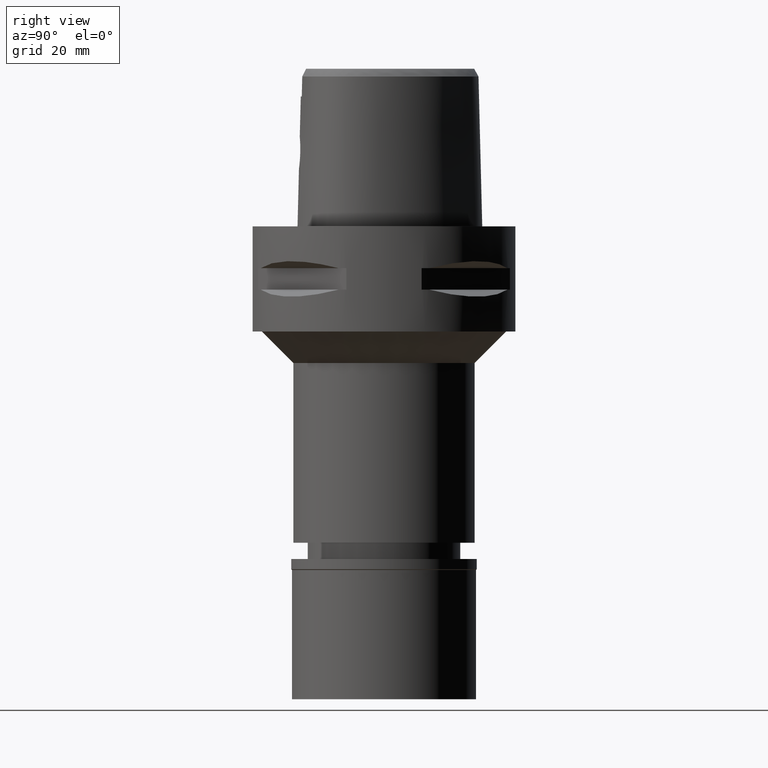
[diagram: clean part render]
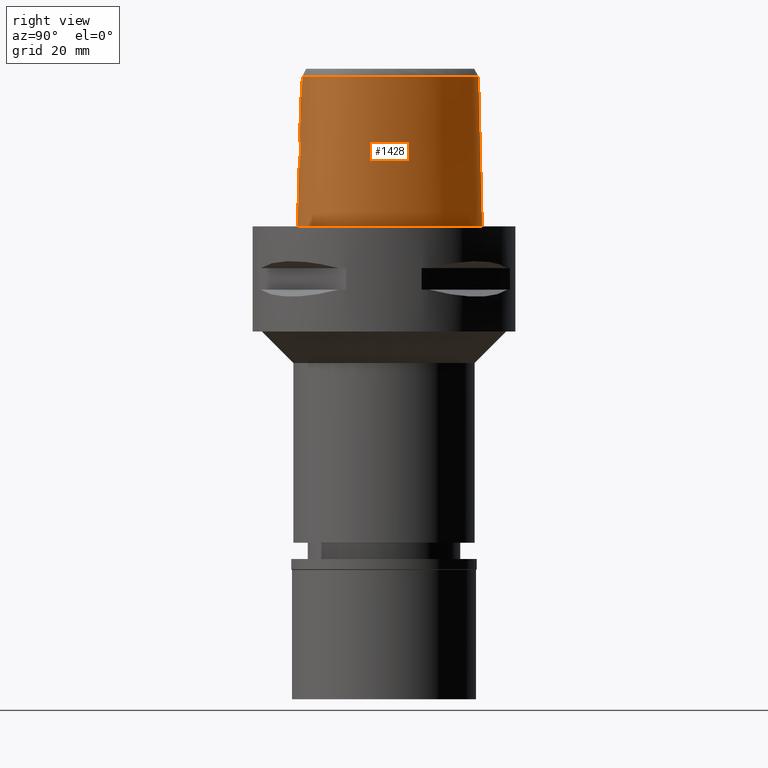
[diagram: same view with one face highlighted and labeled with its STEP entity id]
A machine part, right view. The second image highlights one B-rep face of the part: STEP entity #1428.
In plain terms, the highlighted face is a freeform B-spline surface patch.
Its self-contained STEP definition (entity closure, byte-faithful):
#5 = ORIENTED_EDGE ( 'NONE', *, *, #3525, .T. ) ;
#8 = CARTESIAN_POINT ( 'NONE',  ( -1.070056051250000140, -15.95437342361000255, 19.20397102303999759 ) ) ;
#78 = CARTESIAN_POINT ( 'NONE',  ( 6.797738285503420229E-08, -15.96503292052493173, 19.60000012629468102 ) ) ;
#83 = FACE_OUTER_BOUND ( 'NONE', #3078, .T. ) ;
#106 = CARTESIAN_POINT ( 'NONE',  ( 14.25868461041000046, -10.78027775960999968, 29.09116402499000031 ) ) ;
#120 = EDGE_CURVE ( 'NONE', #3903, #1806, #144, .T. ) ;
#133 = CARTESIAN_POINT ( 'NONE',  ( 4.416345102658000066, 17.06979537405000258, 29.09116402499000031 ) ) ;
#144 = B_SPLINE_CURVE_WITH_KNOTS ( 'NONE', 3,
 ( #4576, #2276, #78, #3028 ),
 .UNSPECIFIED., .F., .F.,
 ( 4, 4 ),
 ( 0.0000000000000000000, 1.000000000000000000 ),
 .UNSPECIFIED. ) ;
#149 = CARTESIAN_POINT ( 'NONE',  ( 1.979050802164249445, -16.09313883417901536, 11.67852903116631147 ) ) ;
#159 = CARTESIAN_POINT ( 'NONE',  ( 15.05961594561999917, -9.784613922648000894, 29.09116402499000031 ) ) ;
#170 = CARTESIAN_POINT ( 'NONE',  ( 1.138812104615412268, -16.15267061231297774, 11.17057442770736664 ) ) ;
#181 = CARTESIAN_POINT ( 'NONE',  ( 16.84071371013999752, -5.352498062335000917, 29.09116402499000031 ) ) ;
#201 = CARTESIAN_POINT ( 'NONE',  ( 17.26695525657000019, -0.2694874901021999669, 9.316778021076999039 ) ) ;
#206 = CARTESIAN_POINT ( 'NONE',  ( -2.281366820062999925E-11, -16.45500000000000185, 1.870355722151999859E-13 ) ) ;
#237 = CARTESIAN_POINT ( 'NONE',  ( 2.899217746531572271, -15.97873758491097718, 13.02871175161756589 ) ) ;
#263 = CARTESIAN_POINT ( 'NONE',  ( 3.050149896193000032, -15.93316336324772031, 14.18941404704231957 ) ) ;
#276 = CARTESIAN_POINT ( 'NONE',  ( -2.281366820062999925E-11, -16.45500000000000185, 1.870355722151999859E-13 ) ) ;
#288 = CARTESIAN_POINT ( 'NONE',  ( 2.170299400654049915, -15.96703807926082952, 16.14297866672072601 ) ) ;
#307 = CARTESIAN_POINT ( 'NONE',  ( 13.06460231237890035, -11.91950040983845405, 28.52071728562175679 ) ) ;
#309 = ORIENTED_EDGE ( 'NONE', *, *, #2839, .F. ) ;
#312 = CARTESIAN_POINT ( 'NONE',  ( 1.217867162102866496, -16.00861105600193213, 16.79681041045230927 ) ) ;
#428 = CARTESIAN_POINT ( 'NONE',  ( 5.053620745117999746, -16.16974069184000129, -0.5704149808821999956 ) ) ;
#476 = CARTESIAN_POINT ( 'NONE',  ( 13.05575583757000047, -11.90823684872999877, 29.09116402499000031 ) ) ;
#503 = CARTESIAN_POINT ( 'NONE',  ( 10.90668475686999805, 11.98047049248000206, 29.09116402499000031 ) ) ;
#517 = CARTESIAN_POINT ( 'NONE',  ( 2.417729193041641800, -16.04731727844026068, 12.13798983179896673 ) ) ;
#527 = CARTESIAN_POINT ( 'NONE',  ( 16.22974790885000118, -8.250337556540999984, 19.20397102303999759 ) ) ;
#550 = CARTESIAN_POINT ( 'NONE',  ( 7.668807556521000102, 15.44980294531000098, 19.20397102303999759 ) ) ;
#571 = CARTESIAN_POINT ( 'NONE',  ( 13.96223202702999977, 8.061115273748999499, 19.20397102303999759 ) ) ;
#572 = CARTESIAN_POINT ( 'NONE',  ( 8.526051962487000024E-11, 18.69499999997999851, 1.858143268880999949E-13 ) ) ;
#582 = CARTESIAN_POINT ( 'NONE',  ( 2.076784380862217727, -16.08390063340860010, 11.76594178764440457 ) ) ;
#605 = CARTESIAN_POINT ( 'NONE',  ( 1.466707760593450205, -16.13401281180602709, 11.31839107166328340 ) ) ;
#613 = LINE ( 'NONE', #3178, #2006 ) ;
#631 = CARTESIAN_POINT ( 'NONE',  ( 1.531589067142497651, -15.99732691922906724, 16.63945844436470978 ) ) ;
#649 = CARTESIAN_POINT ( 'NONE',  ( 7.523733068099055288, 15.26501041873571651, 28.52071728562175679 ) ) ;
#653 = CARTESIAN_POINT ( 'NONE',  ( 2.975249651912823090, -15.92914271478721844, 14.67846616982687102 ) ) ;
#679 = CARTESIAN_POINT ( 'NONE',  ( 2.951306861662620573, -15.92924742299003604, 14.77626636585411823 ) ) ;
#701 = CARTESIAN_POINT ( 'NONE',  ( 2.520317714005604781, -15.94834054842958437, 15.72060082174884776 ) ) ;
#741 = CARTESIAN_POINT ( 'NONE',  ( -1.060560745390999982, -15.70738052230000115, 29.09116402499000031 ) ) ;
#769 = CARTESIAN_POINT ( 'NONE',  ( 4.728927212299886662, 17.73480469916560054, -5.104437950337152585E-07 ) ) ;
#770 = CARTESIAN_POINT ( 'NONE',  ( 11.44887800200999806, -13.28533829809000011, 19.20397102303999759 ) ) ;
#794 = CARTESIAN_POINT ( 'NONE',  ( 1.286803344733999932, -15.75925545812999928, 29.09116402499000031 ) ) ;
#808 = CARTESIAN_POINT ( 'NONE',  ( 3.168920890822999770, -15.55911073834000113, 28.52071374672999582 ) ) ;
#843 = CARTESIAN_POINT ( 'NONE',  ( 8.697311410043001345, -14.35163080553999926, 29.09116402499000031 ) ) ;
#865 = CARTESIAN_POINT ( 'NONE',  ( 15.78948609398999814, -9.116064046029999091, 19.20397102303999759 ) ) ;
#882 = CARTESIAN_POINT ( 'NONE',  ( 3.027798455715707604, -15.95003164277662755, 13.62032956274717321 ) ) ;
#891 = CARTESIAN_POINT ( 'NONE',  ( 0.4768940199983999761, 18.48195206954000014, 9.316778021076999039 ) ) ;
#904 = CARTESIAN_POINT ( 'NONE',  ( 1.805376232599612107, -16.10834772479969246, 11.53923680360887261 ) ) ;
#916 = CARTESIAN_POINT ( 'NONE',  ( 13.74710176135999973, 7.936918434490999985, 29.09116402499000031 ) ) ;
#937 = CARTESIAN_POINT ( 'NONE',  ( 17.17866843611000149, -7.169980046630000103, -0.5704149808821999956 ) ) ;
#948 = CARTESIAN_POINT ( 'NONE',  ( 0.9939297242850041458, -16.15959612542589952, 11.11569146158250554 ) ) ;
#959 = CARTESIAN_POINT ( 'NONE',  ( 15.57503056394999952, -8.992248087672997769, 29.09116402499000031 ) ) ;
#994 = CARTESIAN_POINT ( 'NONE',  ( 1.779262221764184471, -15.98633376436652753, 16.47774649146144910 ) ) ;
#1016 = CARTESIAN_POINT ( 'NONE',  ( 2.196663950529426312, -15.96564993910013719, 16.11602529263612027 ) ) ;
#1034 = CARTESIAN_POINT ( 'NONE',  ( 8.526051962487000024E-11, 18.69499999997999851, 1.858143268880999949E-13 ) ) ;
#1040 = CARTESIAN_POINT ( 'NONE',  ( 16.01658383235694316, -8.155509186612158956, 28.52071728562175679 ) ) ;
#1046 = CARTESIAN_POINT ( 'NONE',  ( 2.320231428406521079, -15.95909571851455944, 15.98050410814317424 ) ) ;
#1053 = CARTESIAN_POINT ( 'NONE',  ( -0.5293534873858000145, 17.95181534379999988, 29.09116402499000031 ) ) ;
#1097 = CARTESIAN_POINT ( 'NONE',  ( 2.824468722466921378, -15.93300016794370677, 15.15105085638172433 ) ) ;
#1111 = CARTESIAN_POINT ( 'NONE',  ( 17.56373944202030657, -5.455996095565049053, -5.104437950337152585E-07 ) ) ;
#1135 = B_SPLINE_CURVE_WITH_KNOTS ( 'NONE', 3,
 ( #1853, #2241, #2496, #1407, #649, #1457, #3731, #2138, #4439, #2165, #3623, #2890, #1040, #3653, #2575, #4072, #307, #1799, #1190, #4590, #3830, #1170 ),
 .UNSPECIFIED., .F., .F.,
 ( 4, 1, 1, 1, 1, 1, 1, 1, 1, 1, 1, 1, 1, 1, 1, 1, 1, 1, 1, 4 ),
 ( 0.0000000000000000000, 0.04404152929334299166, 0.08808305858541753963, 0.1761661171698837292, 0.2642491757542442810, 0.3523322343386048883, 0.4404152929230710778, 0.5284983515073259364, 0.5725398807996119332, 0.6165814100916864327, 0.6606229393839724295, 0.6826437040299567771, 0.7046644686761526222, 0.7266852333222428850, 0.7487059979682272326, 0.7927475272605132295, 0.8367890565526935331, 0.8808305858448738368, 0.9689136444292447692, 1.000000000000000000 ),
 .UNSPECIFIED. ) ;
#1138 = CARTESIAN_POINT ( 'NONE',  ( -0.7074880617262999660, -15.72098075325000011, 29.09116402499000031 ) ) ;
#1170 = CARTESIAN_POINT ( 'NONE',  ( 3.168920890822999770, -15.55911073834000113, 28.52071374672999582 ) ) ;
#1190 = CARTESIAN_POINT ( 'NONE',  ( 8.702202469522230643, -14.36510984285972370, 28.52071728562175679 ) ) ;
#1208 = CARTESIAN_POINT ( 'NONE',  ( 1.309813746412000102, -16.25411905489000475, 9.316778021076999039 ) ) ;
#1237 = CARTESIAN_POINT ( 'NONE',  ( 16.53021709244000093, 3.708305586904000251, -0.5704149808821999956 ) ) ;
#1240 = VERTEX_POINT ( 'NONE', #572 ) ;
#1253 = ORIENTED_EDGE ( 'NONE', *, *, #4442, .F. ) ;
#1256 = B_SPLINE_CURVE_WITH_KNOTS ( 'NONE', 3,
 ( #4536, #1575, #4093, #3750 ),
 .UNSPECIFIED., .F., .F.,
 ( 4, 4 ),
 ( 0.0000000000000000000, 1.000000000000000000 ),
 .UNSPECIFIED. ) ;
#1257 = CARTESIAN_POINT ( 'NONE',  ( 1.941729150336999998, 18.07741811289999845, 19.20397102303999759 ) ) ;
#1275 = CARTESIAN_POINT ( 'NONE',  ( 2.638828814099706488, -16.01860464026678343, 12.46732066279884243 ) ) ;
#1282 = CARTESIAN_POINT ( 'NONE',  ( 15.66039569936999953, -10.22138777847999869, -0.5704149808821999956 ) ) ;
#1285 = CARTESIAN_POINT ( 'NONE',  ( 5.051093169834740770, -16.15562501262835227, -5.104437950337152585E-07 ) ) ;
#1295 = CARTESIAN_POINT ( 'NONE',  ( 2.744096643855139295, -16.00346064512361721, 12.66698413766678222 ) ) ;
#1306 = CARTESIAN_POINT ( 'NONE',  ( -0.3730031600054000140, 18.45651532734999734, 9.316778021076999039 ) ) ;
#1324 = B_SPLINE_CURVE_WITH_KNOTS ( 'NONE', 3,
 ( #4254, #4294, #3146, #2009, #2391, #2735, #948, #2431, #1705, #170, #1640, #2823, #3190, #605, #3211, #904, #4687, #149, #3584, #582, #4710, #1662, #4314, #2453, #3890, #2094, #517, #1684, #2070, #1275, #2412, #1295, #3563, #3864, #2784, #237, #1726, #4232, #882, #3121, #4619, #2760, #4278, #263, #4443, #653, #679, #1780, #1860, #3628, #4763, #2894, #1097, #4785, #3658, #4002, #701, #3239, #3606, #1046, #1461, #1410, #1016, #2501, #288, #1436, #4076, #2524, #1828, #2116, #994, #2919, #4027, #631, #4812, #4418, #2191, #312, #2217, #3683, #2871 ),
 .UNSPECIFIED., .F., .F.,
 ( 4, 2, 2, 1, 1, 1, 2, 2, 2, 2, 2, 1, 1, 2, 2, 2, 2, 2, 1, 2, 2, 2, 2, 2, 2, 2, 2, 1, 1, 1, 2, 2, 2, 2, 2, 1, 1, 2, 2, 2, 2, 2, 2, 2, 2, 4 ),
 ( 0.0000000000000000000, 0.06249999999999446276, 0.09374999999999170108, 0.1093749999999902578, 0.1171874999999895500, 0.1210937499999893002, 0.1230468749999892308, 0.1249999999999891753, 0.1874999999999953648, 0.2187499999999985012, 0.2343750000000000278, 0.2421875000000005551, 0.2460937500000006939, 0.2480468750000008049, 0.2500000000000009437, 0.2812499999999989453, 0.3124999999999969469, 0.3437499999999949485, 0.3593749999999939493, 0.3671874999999935607, 0.3749999999999931166, 0.4374999999999887867, 0.4687499999999866218, 0.4843749999999857891, 0.4999999999999850120, 0.5624999999999812372, 0.5937499999999790168, 0.6093749999999782396, 0.6171874999999780176, 0.6210937499999776845, 0.6230468749999775735, 0.6249999999999773515, 0.6874999999999787947, 0.7187499999999792388, 0.7343749999999795719, 0.7421874999999801270, 0.7460937499999804601, 0.7480468749999802380, 0.7499999999999800160, 0.7812499999999832356, 0.7968749999999843459, 0.8124999999999855671, 0.8437499999999880096, 0.8593749999999890088, 0.8749999999999901190, 1.000000000000000000 ),
 .UNSPECIFIED. ) ;
#1327 = CARTESIAN_POINT ( 'NONE',  ( 11.47659489049000037, 12.46143685309000126, -0.5704149808821999956 ) ) ;
#1351 = CARTESIAN_POINT ( 'NONE',  ( -0.5593289216242000039, 18.44521827818000048, 9.316778021076999039 ) ) ;
#1355 = CARTESIAN_POINT ( 'NONE',  ( 14.78833381328783325, -11.28232911036973363, -5.104437950337152585E-07 ) ) ;
#1360 = CARTESIAN_POINT ( 'NONE',  ( -2.940966075313999512E-11, 17.98202997909999823, 28.52071728569000086 ) ) ;
#1407 = CARTESIAN_POINT ( 'NONE',  ( 4.422474504766104708, 17.08283549833584303, 28.52071728562175679 ) ) ;
#1410 = CARTESIAN_POINT ( 'NONE',  ( 2.232748692361828713, -15.96374470980125437, 16.07819212816551868 ) ) ;
#1425 = CARTESIAN_POINT ( 'NONE',  ( 0.6801907867857971413, 18.69500001275854828, -5.104437950337152585E-07 ) ) ;
#1428 = ADVANCED_FACE ( 'NONE', ( #83 ), #1595, .T. ) ;
#1436 = CARTESIAN_POINT ( 'NONE',  ( 2.164021906619611801, -15.96736812113673842, 16.14931344321802698 ) ) ;
#1455 = B_SPLINE_CURVE_WITH_KNOTS ( 'NONE', 3,
 ( #2605, #3022, #3782, #2680 ),
 .UNSPECIFIED., .F., .F.,
 ( 4, 4 ),
 ( 0.0000000000000000000, 1.000000000000000000 ),
 .UNSPECIFIED. ) ;
#1457 = CARTESIAN_POINT ( 'NONE',  ( 10.91764517733151152, 11.98972036053646129, 28.52071728562175679 ) ) ;
#1461 = CARTESIAN_POINT ( 'NONE',  ( 2.262444582314413477, -15.96216938760132464, 16.04565077979857790 ) ) ;
#1479 = CARTESIAN_POINT ( 'NONE',  ( 5.009809401002999429, -15.92506869988999796, 9.316778021076999039 ) ) ;
#1525 = CARTESIAN_POINT ( 'NONE',  ( -0.7201291679189000261, -16.21519136243999881, 9.316778021076999039 ) ) ;
#1575 = CARTESIAN_POINT ( 'NONE',  ( 3.213444788215948034, -15.61774735051721308, 25.97357128944999971 ) ) ;
#1595 = B_SPLINE_SURFACE_WITH_KNOTS ( 'NONE', 3, 3, ( 
 ( #4487, #3056, #8, #741 ),
 ( #4557, #1525, #3009, #1138 ),
 ( #4829, #1208, #4143, #794 ),
 ( #428, #1479, #2282, #3775 ),
 ( #4194, #3335, #4120, #843 ),
 ( #2329, #3824, #770, #1844 ),
 ( #2957, #2260, #1649, #476 ),
 ( #4303, #2722, #1968, #106 ),
 ( #1282, #2018, #3528, #159 ),
 ( #2794, #3457, #865, #959 ),
 ( #3550, #2057, #527, #4607 ),
 ( #937, #2441, #4218, #1597 ),
 ( #3081, #2768, #3508, #181 ),
 ( #4286, #2422, #4583, #2350 ),
 ( #3898, #201, #1694, #3129 ),
 ( #1237, #3919, #3179, #4675 ),
 ( #4262, #4628, #571, #916 ),
 ( #1327, #3848, #3110, #503 ),
 ( #2401, #3873, #550, #1991 ),
 ( #2812, #3481, #1671, #133 ),
 ( #3155, #1627, #1257, #2743 ),
 ( #4240, #891, #2039, #4650 ),
 ( #2377, #1306, #1812, #4697 ),
 ( #3937, #1351, #2102, #1053 ) ),
 .UNSPECIFIED., .F., .F., .F.,
 ( 4, 1, 1, 1, 1, 1, 1, 1, 1, 1, 1, 1, 1, 1, 1, 1, 1, 1, 1, 1, 1, 4 ),
 ( 4, 4 ),
 ( -0.01796851319151999971, 0.0000000000000000000, 0.08333333333359001227, 0.1666666666668000230, 0.2083333333334000115, 0.2500000000000000000, 0.2916666666666999919, 0.3124999999998999689, 0.3333333333332000326, 0.3541666666666000163, 0.3749999999997999933, 0.4166666666665000407, 0.4583333333330000259, 0.4999999999996999622, 0.5833333333328000192, 0.6666666666660999718, 0.7499999999993000044, 0.8333333333325000369, 0.9166666666657999896, 0.9583333333322999747, 1.000000000000000000, 1.011711214084999977 ),
 ( -8.447960442304001322E-09, 1.000000430845999988 ),
 .UNSPECIFIED. ) ;
#1597 = CARTESIAN_POINT ( 'NONE',  ( 16.46533668454999955, -6.958244184395000254, 29.09116402499000031 ) ) ;
#1627 = CARTESIAN_POINT ( 'NONE',  ( 1.992618722428000089, 18.32080804487000236, 9.316778021076999039 ) ) ;
#1640 = CARTESIAN_POINT ( 'NONE',  ( 1.150837130458414626, -16.15205889506641768, 11.17544410961292201 ) ) ;
#1649 = CARTESIAN_POINT ( 'NONE',  ( 13.20908619742000134, -12.10346103862000078, 19.20397102303999759 ) ) ;
#1662 = CARTESIAN_POINT ( 'NONE',  ( 2.130834279646575791, -16.07853149005604010, 11.81777582520702730 ) ) ;
#1671 = CARTESIAN_POINT ( 'NONE',  ( 4.522582157666000136, 17.29581161129999956, 19.20397102303999759 ) ) ;
#1684 = CARTESIAN_POINT ( 'NONE',  ( 2.478737183283747925, -16.03986208745244824, 12.22013516386344989 ) ) ;
#1694 = CARTESIAN_POINT ( 'NONE',  ( 17.02224552068000207, -0.3128849285779999878, 19.20397102303999759 ) ) ;
#1705 = CARTESIAN_POINT ( 'NONE',  ( 1.120763508486289695, -16.15358090583465511, 11.16333240776561020 ) ) ;
#1726 = CARTESIAN_POINT ( 'NONE',  ( 2.957688824804170835, -15.96752846870872666, 13.22897551199208621 ) ) ;
#1748 = VERTEX_POINT ( 'NONE', #2001 ) ;
#1780 = CARTESIAN_POINT ( 'NONE',  ( 2.907704111751937770, -15.93016185020670505, 14.92213459652817598 ) ) ;
#1799 = CARTESIAN_POINT ( 'NONE',  ( 11.33338046473891048, -13.08225241901459235, 28.52071728562175679 ) ) ;
#1806 = VERTEX_POINT ( 'NONE', #2951 ) ;
#1812 = CARTESIAN_POINT ( 'NONE',  ( -0.3630720983440000049, 18.20950115509000256, 19.20397102303999759 ) ) ;
#1819 = CARTESIAN_POINT ( 'NONE',  ( 17.49754713570586517, -0.2285937477594398026, -5.104437950337152585E-07 ) ) ;
#1828 = CARTESIAN_POINT ( 'NONE',  ( 1.898958778535287273, -15.98067541706731731, 16.38724889510308458 ) ) ;
#1844 = CARTESIAN_POINT ( 'NONE',  ( 11.32630876914000062, -13.06981785503000104, 29.09116402499000031 ) ) ;
#1853 = CARTESIAN_POINT ( 'NONE',  ( -2.940966075313999512E-11, 17.98202997909999823, 28.52071728569000086 ) ) ;
#1860 = CARTESIAN_POINT ( 'NONE',  ( 2.883981873338816282, -15.93080840504316420, 14.99485968243840972 ) ) ;
#1924 = ORIENTED_EDGE ( 'NONE', *, *, #4586, .T. ) ;
#1968 = CARTESIAN_POINT ( 'NONE',  ( 14.43869610103999968, -10.95090958824999916, 19.20397102303999759 ) ) ;
#1991 = CARTESIAN_POINT ( 'NONE',  ( 7.514850431763000493, 15.25369592210000036, 29.09116402499000031 ) ) ;
#2001 = CARTESIAN_POINT ( 'NONE',  ( -2.839833977691000589E-12, -16.18126839358999902, 10.94999999999999929 ) ) ;
#2006 = VECTOR ( 'NONE', #2421, 1000.000000000000114 ) ;
#2009 = CARTESIAN_POINT ( 'NONE',  ( 0.6770584128693669657, -16.17132556088388995, 11.02443681068132619 ) ) ;
#2018 = CARTESIAN_POINT ( 'NONE',  ( 15.46013578145000089, -10.07579649320000037, 9.316778021076999039 ) ) ;
#2039 = CARTESIAN_POINT ( 'NONE',  ( 0.4640360882542000076, 18.23425857583999843, 19.20397102303999759 ) ) ;
#2057 = CARTESIAN_POINT ( 'NONE',  ( 16.45596361828000198, -8.350972088074000155, 9.316778021076999039 ) ) ;
#2070 = CARTESIAN_POINT ( 'NONE',  ( 2.587629427716052977, -16.02556131009697893, 12.38252332210732476 ) ) ;
#2094 = CARTESIAN_POINT ( 'NONE',  ( 2.290593162244018988, -16.06186194956425339, 11.98364703425943745 ) ) ;
#2102 = CARTESIAN_POINT ( 'NONE',  ( -0.5443412045050000092, 18.19851681099000018, 19.20397102303999759 ) ) ;
#2116 = CARTESIAN_POINT ( 'NONE',  ( 1.859549321997238103, -15.98255794229956983, 16.41807320997656561 ) ) ;
#2138 = CARTESIAN_POINT ( 'NONE',  ( 15.84228676733562224, 3.460033425849865729, 28.52071728562175679 ) ) ;
#2165 = CARTESIAN_POINT ( 'NONE',  ( 16.99625257117135035, -3.273868232426635050, 28.52071728562175679 ) ) ;
#2191 = CARTESIAN_POINT ( 'NONE',  ( 1.262794661676006847, -16.00712763199256372, 16.77676499123157683 ) ) ;
#2205 = CARTESIAN_POINT ( 'NONE',  ( 7.967839672173288257, 15.83070313512072502, -5.104437950337152585E-07 ) ) ;
#2217 = CARTESIAN_POINT ( 'NONE',  ( 0.7741482008192022146, -16.02257322970521258, 16.98085959781949938 ) ) ;
#2231 = CARTESIAN_POINT ( 'NONE',  ( 2.040572360294860221, 18.55015626257044659, -5.104437950337152585E-07 ) ) ;
#2241 = CARTESIAN_POINT ( 'NONE',  ( 0.6295828025439821340, 17.98202997637489631, 28.52071728562175679 ) ) ;
#2246 = EDGE_CURVE ( 'NONE', #3139, #3175, #1135, .T. ) ;
#2252 = CARTESIAN_POINT ( 'NONE',  ( -2.940966075313999512E-11, 17.98202997909999823, 28.52071728569000086 ) ) ;
#2260 = CARTESIAN_POINT ( 'NONE',  ( 13.36241655726000133, -12.29868522850999923, 9.316778021076999039 ) ) ;
#2276 = CARTESIAN_POINT ( 'NONE',  ( 6.782218147783198977E-08, -15.90128720080510938, 22.15000025258919791 ) ) ;
#2282 = CARTESIAN_POINT ( 'NONE',  ( 4.965998056886999912, -15.68039670794000173, 19.20397102303999759 ) ) ;
#2329 = CARTESIAN_POINT ( 'NONE',  ( 11.69401646773999914, -13.71637918421000002, -0.5704149808821999956 ) ) ;
#2350 = CARTESIAN_POINT ( 'NONE',  ( 16.98194806318000261, -3.273961227356000148, 29.09116402499000031 ) ) ;
#2377 = CARTESIAN_POINT ( 'NONE',  ( -0.3829342216668000232, 18.70352949960999922, -0.5704149808821999956 ) ) ;
#2391 = CARTESIAN_POINT ( 'NONE',  ( 0.7748558813739817586, -16.16821842566323397, 11.04831638025741469 ) ) ;
#2397 = ORIENTED_EDGE ( 'NONE', *, *, #4717, .T. ) ;
#2401 = CARTESIAN_POINT ( 'NONE',  ( 7.976721806037999407, 15.84201699171999778, -0.5704149808821999956 ) ) ;
#2412 = CARTESIAN_POINT ( 'NONE',  ( 2.709953204679841576, -16.00846021379279804, 12.59958595635183087 ) ) ;
#2421 = DIRECTION ( 'NONE',  ( -1.823524763657955732E-12, -0.02499051295371941192, -0.9996876883618752707 ) ) ;
#2422 = CARTESIAN_POINT ( 'NONE',  ( 17.47781006588000352, -3.270737582618000072, 9.316778021076999039 ) ) ;
#2425 = CARTESIAN_POINT ( 'NONE',  ( 13.50690094271748620, -12.48264649445611241, -5.104437950337152585E-07 ) ) ;
#2431 = CARTESIAN_POINT ( 'NONE',  ( 1.078575942913371222, -16.15565394761470230, 11.14687127074705231 ) ) ;
#2441 = CARTESIAN_POINT ( 'NONE',  ( 16.94089118559000084, -7.099401425884999561, 9.316778021076999039 ) ) ;
#2453 = CARTESIAN_POINT ( 'NONE',  ( 2.147962331140137682, -16.07679769526338731, 11.83463701146487246 ) ) ;
#2495 = VECTOR ( 'NONE', #4054, 1000.000000000000114 ) ;
#2496 = CARTESIAN_POINT ( 'NONE',  ( 1.893775678555301267, 17.84807068955480247, 28.52071728562175679 ) ) ;
#2501 = CARTESIAN_POINT ( 'NONE',  ( 2.180887052763814005, -15.96648089881371924, 16.13220278528723028 ) ) ;
#2524 = CARTESIAN_POINT ( 'NONE',  ( 2.014841840659067351, -15.97504399877427339, 16.29192479722134124 ) ) ;
#2541 = CARTESIAN_POINT ( 'NONE',  ( 17.16495053008644334, -7.165908206769227462, -5.104437950337152585E-07 ) ) ;
#2575 = CARTESIAN_POINT ( 'NONE',  ( 15.07117004567402851, -9.793013887526837991, 28.52071728562175679 ) ) ;
#2605 = CARTESIAN_POINT ( 'NONE',  ( 3.235096591086000117, -15.64751801257999908, 24.70000006080999810 ) ) ;
#2680 = CARTESIAN_POINT ( 'NONE',  ( 2.030224829794000080E-07, -15.83752876601000281, 24.70000006102999990 ) ) ;
#2722 = CARTESIAN_POINT ( 'NONE',  ( 14.61870759166999889, -11.12154141689000042, 9.316778021076999039 ) ) ;
#2735 = CARTESIAN_POINT ( 'NONE',  ( 0.9209982704614212423, -16.16262558226604895, 11.09193420934185248 ) ) ;
#2743 = CARTESIAN_POINT ( 'NONE',  ( 1.890839578245999908, 17.83402818092000075, 29.09116402499000031 ) ) ;
#2760 = CARTESIAN_POINT ( 'NONE',  ( 3.048883421515426573, -15.94046337244651923, 13.90502257973828648 ) ) ;
#2768 = CARTESIAN_POINT ( 'NONE',  ( 17.33218217286000140, -5.422849665388000062, 9.316778021076999039 ) ) ;
#2771 = CARTESIAN_POINT ( 'NONE',  ( 11.68694517217151763, -13.70394532362162288, -5.104437950337152585E-07 ) ) ;
#2784 = CARTESIAN_POINT ( 'NONE',  ( 2.806282367902104724, -15.99380854387472795, 12.80500890572250761 ) ) ;
#2794 = CARTESIAN_POINT ( 'NONE',  ( 16.21839715407000071, -9.363695962741999779, -0.5704149808821999956 ) ) ;
#2812 = CARTESIAN_POINT ( 'NONE',  ( 4.735056267681000186, 17.74784408579999706, -0.5704149808821999956 ) ) ;
#2823 = CARTESIAN_POINT ( 'NONE',  ( 1.158353828547657782, -16.15167258786866000, 11.17852165137646203 ) ) ;
#2839 = EDGE_CURVE ( 'NONE', #4376, #3175, #1256, .T. ) ;
#2871 = CARTESIAN_POINT ( 'NONE',  ( 0.0000000000000000000, -16.02877864023999877, 17.05000000000000071 ) ) ;
#2890 = CARTESIAN_POINT ( 'NONE',  ( 16.47905536660954340, -6.962316254603920562, 28.52071728562175679 ) ) ;
#2892 = ORIENTED_EDGE ( 'NONE', *, *, #2246, .T. ) ;
#2894 = CARTESIAN_POINT ( 'NONE',  ( 2.829313881745448178, -15.93280562740808470, 15.13908937170598001 ) ) ;
#2919 = CARTESIAN_POINT ( 'NONE',  ( 1.737183591012292805, -15.98828192606207743, 16.50739953107601821 ) ) ;
#2951 = CARTESIAN_POINT ( 'NONE',  ( 0.0000000000000000000, -16.02877864023999877, 17.05000000000000071 ) ) ;
#2957 = CARTESIAN_POINT ( 'NONE',  ( 13.51574691709999954, -12.49390941841000036, -0.5704149808821999956 ) ) ;
#3009 = CARTESIAN_POINT ( 'NONE',  ( -0.7138086148225999406, -15.96808605784999813, 19.20397102303999759 ) ) ;
#3022 = CARTESIAN_POINT ( 'NONE',  ( 2.169052010909686246, -15.77399788591470120, 24.70000016056459557 ) ) ;
#3028 = CARTESIAN_POINT ( 'NONE',  ( 0.0000000000000000000, -16.02877864023999877, 17.05000000000000071 ) ) ;
#3055 = B_SPLINE_CURVE_WITH_KNOTS ( 'NONE', 3,
 ( #206, #3256, #1285, #4289, #2771, #2425, #1355, #3576, #3278, #4434, #2541, #1111, #4380, #1819, #3361, #4828, #4091, #2205, #769, #2231, #1425, #1034 ),
 .UNSPECIFIED., .F., .F.,
 ( 4, 1, 1, 1, 1, 1, 1, 1, 1, 1, 1, 1, 1, 1, 1, 1, 1, 1, 1, 4 ),
 ( 0.0000000000000000000, 0.08333333333359001227, 0.1666666666668000230, 0.2083333333334000115, 0.2500000000000000000, 0.2916666666666999919, 0.3124999999998999689, 0.3333333333332000326, 0.3541666666666000163, 0.3749999999997999933, 0.4166666666665000407, 0.4583333333330000259, 0.4999999999996999622, 0.5833333333328000192, 0.6666666666660999718, 0.7499999999993000044, 0.8333333333325000369, 0.9166666666657999896, 0.9583333333322999747, 1.000000000000000000 ),
 .UNSPECIFIED. ) ;
#3056 = CARTESIAN_POINT ( 'NONE',  ( -1.079551357109000076, -16.20136632491999862, 9.316778021076999039 ) ) ;
#3078 = EDGE_LOOP ( 'NONE', ( #1253, #2892, #309, #1924, #4270, #4388, #2397, #5 ) ) ;
#3081 = CARTESIAN_POINT ( 'NONE',  ( 17.57791640422000157, -5.458025466914000035, -0.5704149808821999956 ) ) ;
#3110 = CARTESIAN_POINT ( 'NONE',  ( 11.09665480141000060, 12.14079261268000032, 19.20397102303999759 ) ) ;
#3121 = CARTESIAN_POINT ( 'NONE',  ( 3.041209740384550386, -15.94490574327321575, 13.76368115324908459 ) ) ;
#3129 = CARTESIAN_POINT ( 'NONE',  ( 16.77753578479000041, -0.3562823670539000398, 29.09116402499000031 ) ) ;
#3139 = VERTEX_POINT ( 'NONE', #2252 ) ;
#3146 = CARTESIAN_POINT ( 'NONE',  ( 0.3842297570300093335, -16.17878268541347708, 10.96777226348768508 ) ) ;
#3155 = CARTESIAN_POINT ( 'NONE',  ( 2.043508294519000401, 18.56419797685000006, -0.5704149808821999956 ) ) ;
#3175 = VERTEX_POINT ( 'NONE', #808 ) ;
#3178 = CARTESIAN_POINT ( 'NONE',  ( -2.839833977691000589E-12, -16.18126839358999902, 10.94999999999999929 ) ) ;
#3179 = CARTESIAN_POINT ( 'NONE',  ( 16.06260381194000075, 3.539545240908000157, 19.20397102303999759 ) ) ;
#3190 = CARTESIAN_POINT ( 'NONE',  ( 1.306758668672082457, -16.14399373876818800, 11.23972581488814981 ) ) ;
#3211 = CARTESIAN_POINT ( 'NONE',  ( 1.719191830029634271, -16.11523926597476830, 11.47872671524100596 ) ) ;
#3239 = CARTESIAN_POINT ( 'NONE',  ( 2.459696765391574225, -15.95161770387217004, 15.80683248070965163 ) ) ;
#3256 = CARTESIAN_POINT ( 'NONE',  ( 1.683697723273428259, -16.45500001275569701, -5.104437950337152585E-07 ) ) ;
#3278 = CARTESIAN_POINT ( 'NONE',  ( 16.20602473071626548, -9.356552740767522636, -5.104437950337152585E-07 ) ) ;
#3335 = CARTESIAN_POINT ( 'NONE',  ( 8.866858698924000137, -14.81887808477999968, 9.316778021076999039 ) ) ;
#3346 = LINE ( 'NONE', #1360, #2495 ) ;
#3361 = CARTESIAN_POINT ( 'NONE',  ( 16.51672825988086402, 3.703437504356545062, -5.104437950337152585E-07 ) ) ;
#3457 = CARTESIAN_POINT ( 'NONE',  ( 16.00394162402999854, -9.239880004386000323, 9.316778021076999039 ) ) ;
#3481 = CARTESIAN_POINT ( 'NONE',  ( 4.628819212674000205, 17.52182784855000008, 9.316778021076999039 ) ) ;
#3508 = CARTESIAN_POINT ( 'NONE',  ( 17.08644794150000124, -5.387673863861000001, 19.20397102303999759 ) ) ;
#3511 = VERTEX_POINT ( 'NONE', #276 ) ;
#3525 = EDGE_CURVE ( 'NONE', #3511, #1240, #3055, .T. ) ;
#3528 = CARTESIAN_POINT ( 'NONE',  ( 15.25987586352999870, -9.930205207924998945, 19.20397102303999759 ) ) ;
#3550 = CARTESIAN_POINT ( 'NONE',  ( 16.68217932770999923, -8.451606619607000326, -0.5704149808821999956 ) ) ;
#3563 = CARTESIAN_POINT ( 'NONE',  ( 2.775961287969037183, -15.99857004330619503, 12.73620107529055367 ) ) ;
#3576 = CARTESIAN_POINT ( 'NONE',  ( 15.64884225290569653, -10.21298828876872022, -5.104437950337152585E-07 ) ) ;
#3584 = CARTESIAN_POINT ( 'NONE',  ( 2.044225401078156867, -16.08701963945069480, 11.73626748626124083 ) ) ;
#3606 = CARTESIAN_POINT ( 'NONE',  ( 2.356615372638850570, -15.95714923954085940, 15.93698914121854315 ) ) ;
#3623 = CARTESIAN_POINT ( 'NONE',  ( 16.85489147434494583, -5.354527548487563848, 28.52071728562175679 ) ) ;
#3628 = CARTESIAN_POINT ( 'NONE',  ( 2.852909278454516251, -15.93189406616820847, 15.07915126970514486 ) ) ;
#3653 = CARTESIAN_POINT ( 'NONE',  ( 15.58740368722438951, -8.999391713746906163, 28.52071728562175679 ) ) ;
#3658 = CARTESIAN_POINT ( 'NONE',  ( 2.759961640973260355, -15.93564958624568284, 15.30749493561488883 ) ) ;
#3683 = CARTESIAN_POINT ( 'NONE',  ( 0.3724840145390361790, -16.02877864023999877, 17.04999999999999716 ) ) ;
#3731 = CARTESIAN_POINT ( 'NONE',  ( 13.75951381385728212, 7.944084035686464595, 28.52071728562175679 ) ) ;
#3750 = CARTESIAN_POINT ( 'NONE',  ( 3.168920890822999770, -15.55911073834000113, 28.52071374672999582 ) ) ;
#3775 = CARTESIAN_POINT ( 'NONE',  ( 4.922186712770999506, -15.43572471599000018, 29.09116402499000031 ) ) ;
#3782 = CARTESIAN_POINT ( 'NONE',  ( 1.084489111474429057, -15.83754148654090521, 24.70000016056459557 ) ) ;
#3824 = CARTESIAN_POINT ( 'NONE',  ( 11.57144723486999993, -13.50085874114999918, 9.316778021076999039 ) ) ;
#3830 = CARTESIAN_POINT ( 'NONE',  ( 3.738627708319753662, -15.49270856215249914, 28.52071728562175679 ) ) ;
#3848 = CARTESIAN_POINT ( 'NONE',  ( 11.28662484594999960, 12.30111473289000124, 9.316778021076999039 ) ) ;
#3864 = CARTESIAN_POINT ( 'NONE',  ( 2.796681338619850798, -15.99533385695051813, 12.78273984513788264 ) ) ;
#3873 = CARTESIAN_POINT ( 'NONE',  ( 7.822764681278999710, 15.64590996851000071, 9.316778021076999039 ) ) ;
#3890 = CARTESIAN_POINT ( 'NONE',  ( 2.223227574825757724, -16.06911398227905252, 11.90960399256272417 ) ) ;
#3898 = CARTESIAN_POINT ( 'NONE',  ( 17.51166499244999741, -0.2260900516263000259, -0.5704149808821999956 ) ) ;
#3903 = VERTEX_POINT ( 'NONE', #4556 ) ;
#3919 = CARTESIAN_POINT ( 'NONE',  ( 16.29641045219000262, 3.623925413906000426, 9.316778021076999039 ) ) ;
#3937 = CARTESIAN_POINT ( 'NONE',  ( -0.5743166387433999986, 18.69191974537000078, -0.5704149808821999956 ) ) ;
#4002 = CARTESIAN_POINT ( 'NONE',  ( 2.681016418395044010, -15.93974068711151837, 15.46783011061541124 ) ) ;
#4027 = CARTESIAN_POINT ( 'NONE',  ( 1.616099766049514663, -15.99381337938741332, 16.58846643699799728 ) ) ;
#4054 = DIRECTION ( 'NONE',  ( 4.019336764854883710E-12, 0.02499051285785929000, -0.9996876883642715761 ) ) ;
#4072 = CARTESIAN_POINT ( 'NONE',  ( 14.26907046692745951, -10.79012245165363026, 28.52071728562175679 ) ) ;
#4076 = CARTESIAN_POINT ( 'NONE',  ( 2.088968113521980641, -15.97131126311716898, 16.22457167555463897 ) ) ;
#4091 = CARTESIAN_POINT ( 'NONE',  ( 11.46563509003561343, 12.45218750827844190, -5.104437950337152585E-07 ) ) ;
#4093 = CARTESIAN_POINT ( 'NONE',  ( 3.191384142201736829, -15.58827398948734633, 27.24714251809000132 ) ) ;
#4120 = CARTESIAN_POINT ( 'NONE',  ( 8.782085054482999809, -14.58525444516000036, 19.20397102303999759 ) ) ;
#4143 = CARTESIAN_POINT ( 'NONE',  ( 1.298308545572999906, -16.00668725650999846, 19.20397102303999759 ) ) ;
#4194 = CARTESIAN_POINT ( 'NONE',  ( 8.951632343364000377, -15.05250172439999901, -0.5704149808821999956 ) ) ;
#4218 = CARTESIAN_POINT ( 'NONE',  ( 16.70311393507000020, -7.028822805140000796, 19.20397102303999759 ) ) ;
#4232 = CARTESIAN_POINT ( 'NONE',  ( 3.014162081768898549, -15.95399573205361854, 13.52323755265707383 ) ) ;
#4240 = CARTESIAN_POINT ( 'NONE',  ( 0.4897519517425999447, 18.72964556323000096, -0.5704149808821999956 ) ) ;
#4254 = CARTESIAN_POINT ( 'NONE',  ( -2.839833977691000589E-12, -16.18126839358999902, 10.94999999999999929 ) ) ;
#4262 = CARTESIAN_POINT ( 'NONE',  ( 14.39249255838000074, 8.309508952265002080, -0.5704149808821999956 ) ) ;
#4270 = ORIENTED_EDGE ( 'NONE', *, *, #120, .T. ) ;
#4278 = CARTESIAN_POINT ( 'NONE',  ( 3.049961347112720933, -15.93921296701097567, 13.94964838113522809 ) ) ;
#4286 = CARTESIAN_POINT ( 'NONE',  ( 17.72574106723000398, -3.269125760247999946, -0.5704149808821999956 ) ) ;
#4289 = CARTESIAN_POINT ( 'NONE',  ( 8.946741560561356721, -15.03902344956007830, -5.104437950337152585E-07 ) ) ;
#4294 = CARTESIAN_POINT ( 'NONE',  ( 0.1898211197318568910, -16.18126839358999902, 10.94999999999999396 ) ) ;
#4303 = CARTESIAN_POINT ( 'NONE',  ( 14.79871908229999988, -11.29217324551999901, -0.5704149808821999956 ) ) ;
#4314 = CARTESIAN_POINT ( 'NONE',  ( 2.141618861872307100, -16.07744231414372749, 11.82835874812606392 ) ) ;
#4359 = EDGE_CURVE ( 'NONE', #1748, #1806, #1324, .T. ) ;
#4376 = VERTEX_POINT ( 'NONE', #4395 ) ;
#4380 = CARTESIAN_POINT ( 'NONE',  ( 17.71143736841353089, -3.269218749916900535, -5.104437950337152585E-07 ) ) ;
#4388 = ORIENTED_EDGE ( 'NONE', *, *, #4359, .F. ) ;
#4395 = CARTESIAN_POINT ( 'NONE',  ( 3.235096591086000117, -15.64751801257999908, 24.70000006080999810 ) ) ;
#4418 = CARTESIAN_POINT ( 'NONE',  ( 1.354452607727719249, -16.00396228356807171, 16.73322745257438271 ) ) ;
#4434 = CARTESIAN_POINT ( 'NONE',  ( 16.66912843307551739, -8.445800786444761954, -5.104437950337152585E-07 ) ) ;
#4439 = CARTESIAN_POINT ( 'NONE',  ( 16.79165444019630371, -0.3537785292841076346, 28.52071728562175679 ) ) ;
#4442 = EDGE_CURVE ( 'NONE', #3139, #1240, #3346, .T. ) ;
#4443 = CARTESIAN_POINT ( 'NONE',  ( 3.032153927794988046, -15.93034332000361708, 14.38503233290864891 ) ) ;
#4487 = CARTESIAN_POINT ( 'NONE',  ( -1.089046662968000012, -16.44835922623000002, -0.5704149808821999956 ) ) ;
#4536 = CARTESIAN_POINT ( 'NONE',  ( 3.235096591086000117, -15.64751801257999908, 24.70000006080999810 ) ) ;
#4556 = CARTESIAN_POINT ( 'NONE',  ( 2.030224829794000080E-07, -15.83752876601000281, 24.70000006102999990 ) ) ;
#4557 = CARTESIAN_POINT ( 'NONE',  ( -0.7264497210152000006, -16.46229666703000305, -0.5704149808821999956 ) ) ;
#4576 = CARTESIAN_POINT ( 'NONE',  ( 2.030224829794000080E-07, -15.83752876601000281, 24.70000006102999990 ) ) ;
#4583 = CARTESIAN_POINT ( 'NONE',  ( 17.22987906453000306, -3.272349404987000110, 19.20397102303999759 ) ) ;
#4586 = EDGE_CURVE ( 'NONE', #4376, #3903, #1455, .T. ) ;
#4590 = CARTESIAN_POINT ( 'NONE',  ( 5.902447799197539702, -15.16907841529140732, 28.52071728562175679 ) ) ;
#4607 = CARTESIAN_POINT ( 'NONE',  ( 16.00353219942000038, -8.149703025007998036, 29.09116402499000031 ) ) ;
#4619 = CARTESIAN_POINT ( 'NONE',  ( 3.044506884776515321, -15.94333381584075582, 13.81108558313460932 ) ) ;
#4628 = CARTESIAN_POINT ( 'NONE',  ( 14.17736229271000070, 8.185312113006999013, 9.316778021076999039 ) ) ;
#4650 = CARTESIAN_POINT ( 'NONE',  ( 0.4511781565099999836, 17.98656508214999761, 29.09116402499000031 ) ) ;
#4675 = CARTESIAN_POINT ( 'NONE',  ( 15.82879717169999978, 3.455165067909999888, 29.09116402499000031 ) ) ;
#4687 = CARTESIAN_POINT ( 'NONE',  ( 1.935527014336410501, -16.09705987419005879, 11.64218429701107915 ) ) ;
#4697 = CARTESIAN_POINT ( 'NONE',  ( -0.3531410366825999958, 17.96248698283000067, 29.09116402499000031 ) ) ;
#4710 = CARTESIAN_POINT ( 'NONE',  ( 2.114644142903201463, -16.08015782783976277, 11.80200641014882912 ) ) ;
#4717 = EDGE_CURVE ( 'NONE', #1748, #3511, #613, .T. ) ;
#4763 = CARTESIAN_POINT ( 'NONE',  ( 2.836520581861567525, -15.93251973351802242, 15.12113420123080942 ) ) ;
#4785 = CARTESIAN_POINT ( 'NONE',  ( 2.821425036078518467, -15.93312409536605578, 15.15848376097718031 ) ) ;
#4812 = CARTESIAN_POINT ( 'NONE',  ( 1.399412083726095490, -16.00233608542868069, 16.71046994217811843 ) ) ;
#4828 = CARTESIAN_POINT ( 'NONE',  ( 14.38008120800550671, 8.302343756411996623, -5.104437950337152585E-07 ) ) ;
#4829 = CARTESIAN_POINT ( 'NONE',  ( 1.321318947251000075, -16.50155085325999949, -0.5704149808821999956 ) ) ;